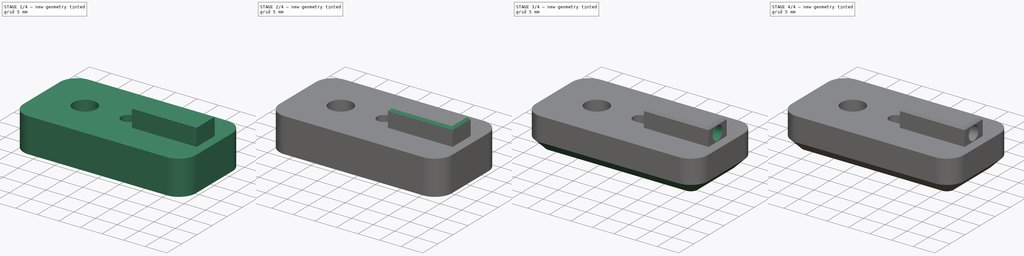
[diagram: build sequence overview — one tinted view per stage of 4, left to right]
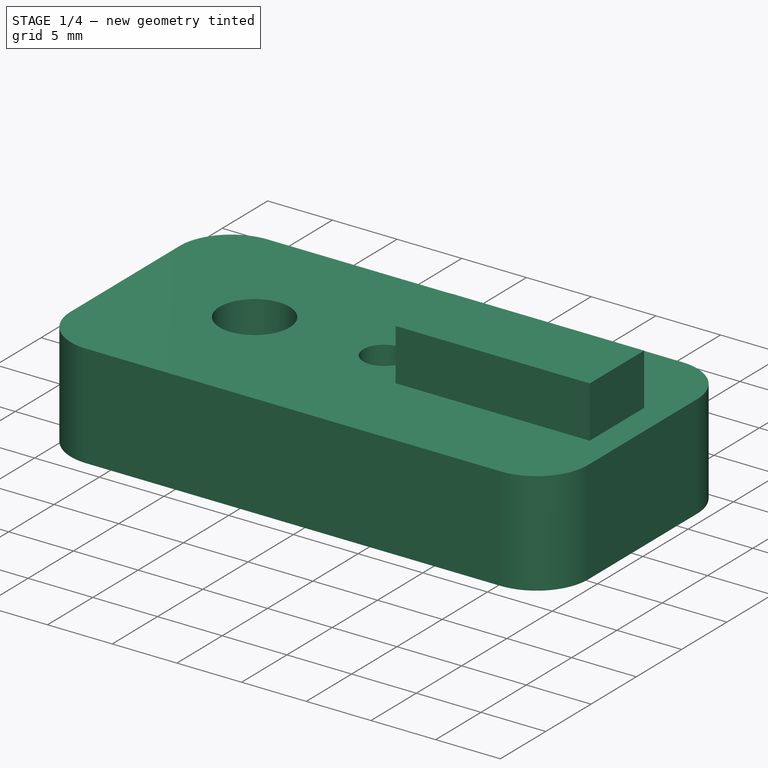
[diagram: stage 1 of 4 — iso view after this stage's code; geometry added in this stage tinted green]
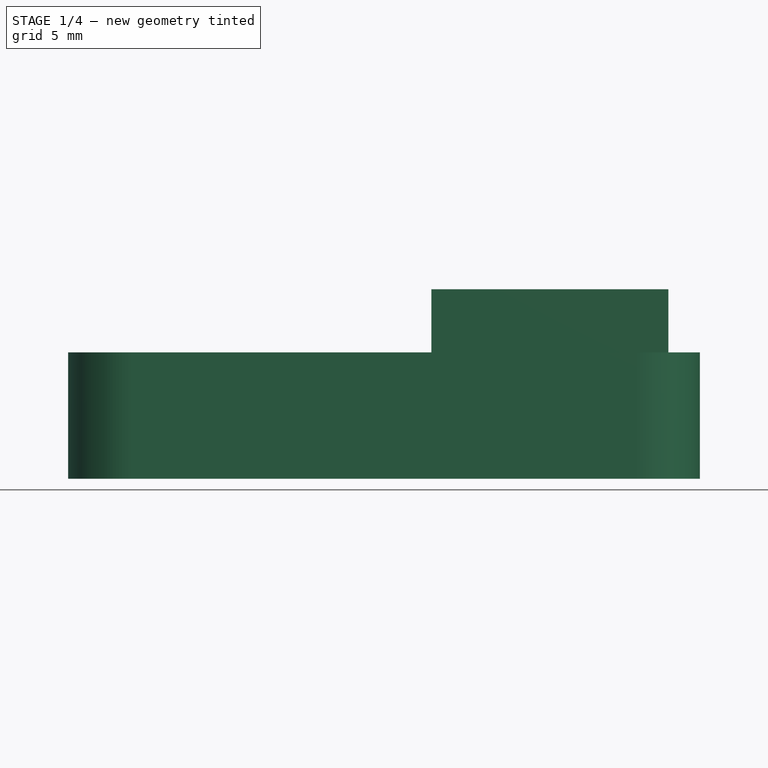
[diagram: stage 1 of 4 — front view after this stage's code; geometry added in this stage tinted green]
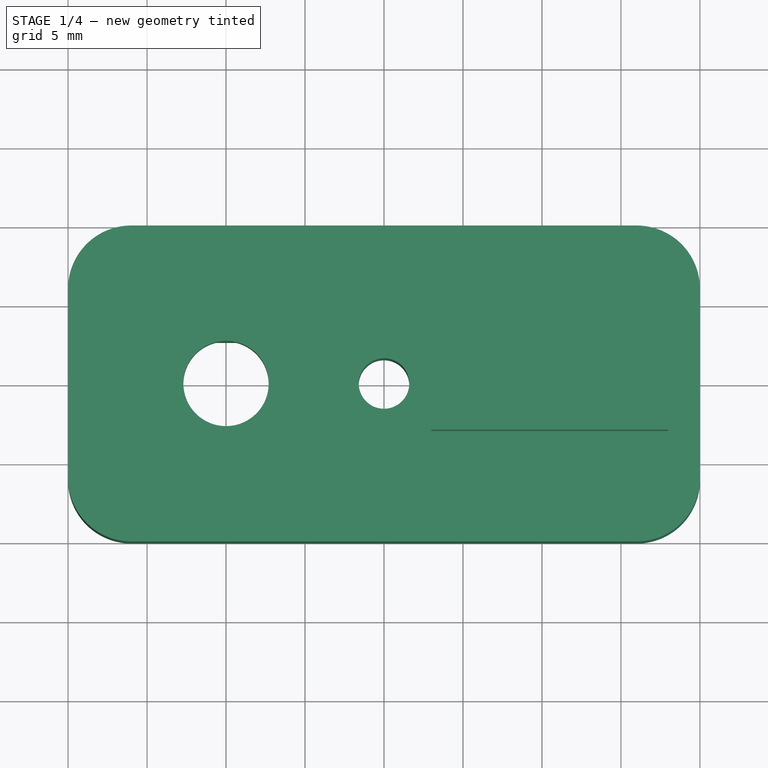
[diagram: stage 1 of 4 — top view after this stage's code; geometry added in this stage tinted green]
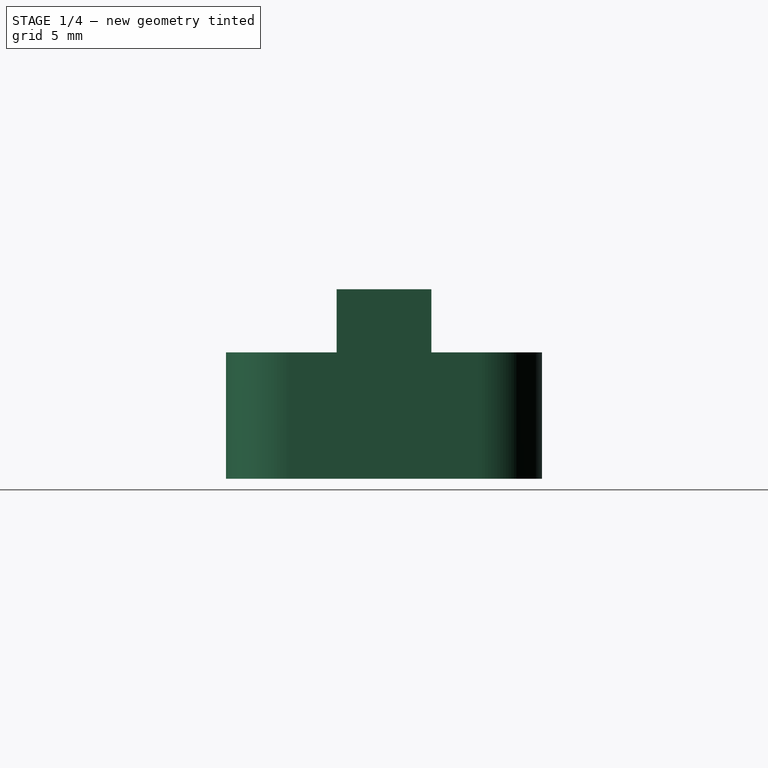
[diagram: stage 1 of 4 — right view after this stage's code; geometry added in this stage tinted green]
FCSTD DOCUMENT  (FreeCAD 1.1R20260414 (Git shallow))
Label: ThermistorExtrusionMount
License: All rights reserved
LicenseURL: https://en.wikipedia.org/wiki/All_rights_reserved
objects: Sketcher::SketchObject×8, PartDesign::Pocket×6, PartDesign::Body×3, App::Point×3, PartDesign::Pad×2, PartDesign::Chamfer×2, PartDesign::FeatureBase×2, PartDesign::Plane×1, PartDesign::Fillet×1
note: 57 computed .brp shape members not serialized (recipe doc carries the construction recipe); baked Part::Feature solids carry a one-line shape summary decoded from their .brp

FEATURE [Sketcher::SketchObject] Sketch  label="BodySketch"
  ArcFitTolerance = 1e-06
  AttachmentSupport = -> [XY_Plane]
  ExternalTypes = [0]
  FullyConstrained = true
  MakeInternals = false
  MapMode = 5
  _ExternalGeoVersion = 0
  sketch-geometry (14):
    g0: LineSegment StartX=4 StartY=0 StartZ=0 EndX=36 EndY=0 EndZ=0
    g1: LineSegment StartX=40 StartY=4 StartZ=0 EndX=40 EndY=16 EndZ=0
    g2: LineSegment StartX=36 StartY=20 StartZ=0 EndX=4 EndY=20 EndZ=0
    g3: LineSegment StartX=0 StartY=16 StartZ=0 EndX=0 EndY=4 EndZ=0
    g4: ArcOfCircle CenterX=4 CenterY=4 CenterZ=0 NormalX=0 NormalY=0 NormalZ=1 AngleXU=0 Radius=4 StartAngle=3.14159 EndAngle=4.71239
    g5: GeomPoint [constr] X=0 Y=0 Z=0
    g6: ArcOfCircle CenterX=4 CenterY=16 CenterZ=0 NormalX=0 NormalY=0 NormalZ=1 AngleXU=0 Radius=4 StartAngle=1.5708 EndAngle=3.14159
    g7: GeomPoint [constr] X=0 Y=20 Z=0
    g8: ArcOfCircle CenterX=36 CenterY=16 CenterZ=0 NormalX=0 NormalY=0 NormalZ=1 AngleXU=0 Radius=4 StartAngle=4.18e-14 EndAngle=1.5708
    g9: GeomPoint [constr] X=40 Y=20 Z=0
    g10: ArcOfCircle CenterX=36 CenterY=4 CenterZ=0 NormalX=0 NormalY=0 NormalZ=1 AngleXU=0 Radius=4 StartAngle=4.71239 EndAngle=6.28319
    g11: GeomPoint [constr] X=40 Y=0 Z=0
    g12: Circle CenterX=10 CenterY=10 CenterZ=0 NormalX=0 NormalY=0 NormalZ=1 AngleXU=0 Radius=2.7
    g13: Circle CenterX=20 CenterY=10 CenterZ=0 NormalX=0 NormalY=0 NormalZ=1 AngleXU=0 Radius=1.6
  constraints (33):
    c: Horizontal(g0)
    c: Horizontal(g2)
    c: Vertical(g1)
    c: Vertical(g3)
    c: Coincident(g5,g-1)
    c: DistanceY(g5,g7) = 20
    c: DistanceX(g7,g9) = 40
    c: PointOnObject(g5,g0)
    c: PointOnObject(g5,g3)
    c: Tangent(g0,g4) = -1.5708
    c: Tangent(g3,g4) = -1.5708
    c: PointOnObject(g7,g3)
    c: PointOnObject(g7,g2)
    c: Tangent(g3,g6) = -1.5708
    c: Tangent(g2,g6) = -1.5708
    c: PointOnObject(g9,g2)
    c: PointOnObject(g9,g1)
    c: Tangent(g2,g8) = -1.5708
    c: Tangent(g1,g8) = -1.5708
    c: PointOnObject(g11,g1)
    c: PointOnObject(g11,g0)
    c: Tangent(g1,g10) = -1.5708
    c: Tangent(g0,g10) = -1.5708
    c: Radius(g4) = 4
    c: Radius(g10) = 4
    c: Equal(g10,g8)
    c: Equal(g4,g6)
    c: Diameter(g12) = 5.4
    c: Distance(g12,g-2) = 10
    c: Distance(g12,g-1) = 10
    c: Diameter(g13) = 3.2
    c: Horizontal(g13,g12)
    c: DistanceX(g12,g13) = 10
FEATURE [PartDesign::Pad] Pad  label="BodyPad"
  Direction = (0,0,1)
  Length = 8
  Length2 = 10
  Profile = -> Sketch
  ReferenceAxis = -> Sketch [N_Axis]
  Refine = true
  SideType = 0
  Suppressed = false
  Type = 0
  Type2 = 0
FEATURE [Sketcher::SketchObject] Sketch001  label="WireHousingSketch"
  ArcFitTolerance = 1e-06
  AttachmentSupport = -> [Pad]
  ExternalTypes = [0]
  FullyConstrained = true
  MakeInternals = false
  MapMode = 5
  Placement = pos=(0,0,8) rot=(0,0,1;0rad)
  _ExternalGeoVersion = 0
  sketch-geometry (4):
    g0: LineSegment StartX=23 StartY=13 StartZ=0 EndX=23 EndY=7 EndZ=0
    g1: LineSegment StartX=23 StartY=7 StartZ=0 EndX=38 EndY=7 EndZ=0
    g2: LineSegment StartX=38 StartY=7 StartZ=0 EndX=38 EndY=13 EndZ=0
    g3: LineSegment StartX=38 StartY=13 StartZ=0 EndX=23 EndY=13 EndZ=0
  constraints (12):
    c: Coincident(g0,g1)
    c: Coincident(g1,g2)
    c: Coincident(g2,g3)
    c: Coincident(g3,g0)
    c: Vertical(g0)
    c: Vertical(g2)
    c: Horizontal(g1)
    c: Horizontal(g3)
    c: DistanceY(g2,g2) = 6
    c: DistanceX(g-1,g0) = 23
    c: DistanceX(g1,g1) = 15
    c: Distance(g1,g-1) = 7
FEATURE [PartDesign::Pad] Pad001  label="WireHousingPad"
  BaseFeature = -> Pad
  Direction = (0,0,1)
  Length = 4
  Length2 = 10
  Profile = -> Sketch001
  ReferenceAxis = -> Sketch001 [N_Axis]
  Refine = true
  SideType = 0
  Suppressed = false
  Type = 0
  Type2 = 0
FEATURE [Sketcher::SketchObject] Sketch002  label="CounterboreSupport1Sketch"
  ArcFitTolerance = 1e-06
  AttachmentSupport = -> [Pad001]
  ExternalGeometry = -> [Pad001]
  ExternalTypes = [0]
  FullyConstrained = true
  MakeInternals = false
  MapMode = 5
  Placement = pos=(0,0,0) rot=(1,0,0;3.14159rad)
  _ExternalGeoVersion = 0
  sketch-geometry (4):
    g0: LineSegment StartX=7.3 StartY=-7.3 StartZ=0 EndX=7.3 EndY=-12.7 EndZ=0
    g1: LineSegment StartX=7.3 StartY=-12.7 StartZ=0 EndX=12.7 EndY=-12.7 EndZ=0
    g2: LineSegment StartX=12.7 StartY=-12.7 StartZ=0 EndX=12.7 EndY=-7.3 EndZ=0
    g3: LineSegment StartX=12.7 StartY=-7.3 StartZ=0 EndX=7.3 EndY=-7.3 EndZ=0
  constraints (11):
    c: Coincident(g0,g1)
    c: Coincident(g1,g2)
    c: Coincident(g2,g3)
    c: Coincident(g3,g0)
    c: Vertical(g0)
    c: Vertical(g2)
    c: Horizontal(g1)
    c: Horizontal(g3)
    c: Symmetric(g0,g1,g-3)
    c: Equal(g3,g2)
    c: Tangent(g-3,g3)
FEATURE [PartDesign::Pocket] Pocket  label="CounterboreSupport1Pocket"
  BaseFeature = -> Pad001
  Direction = (0,0,1)
  Length = 4.4
  Length2 = 5
  Profile = -> Sketch002
  ReferenceAxis = -> Sketch002 [N_Axis]
  Refine = true
  SideType = 0
  Suppressed = false
  Type = 0
  Type2 = 0
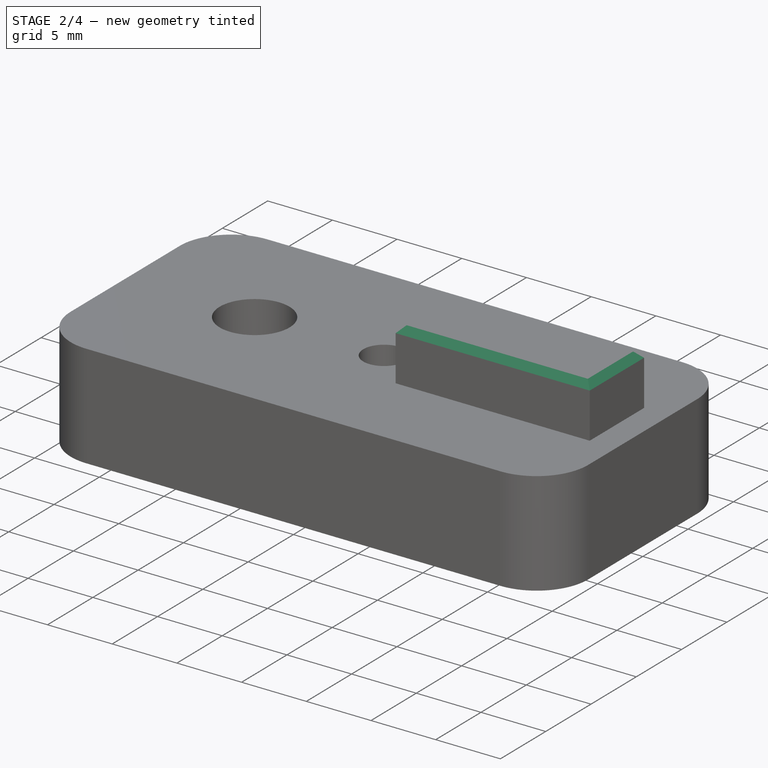
[diagram: stage 2 of 4 — iso view after this stage's code; geometry added in this stage tinted green]
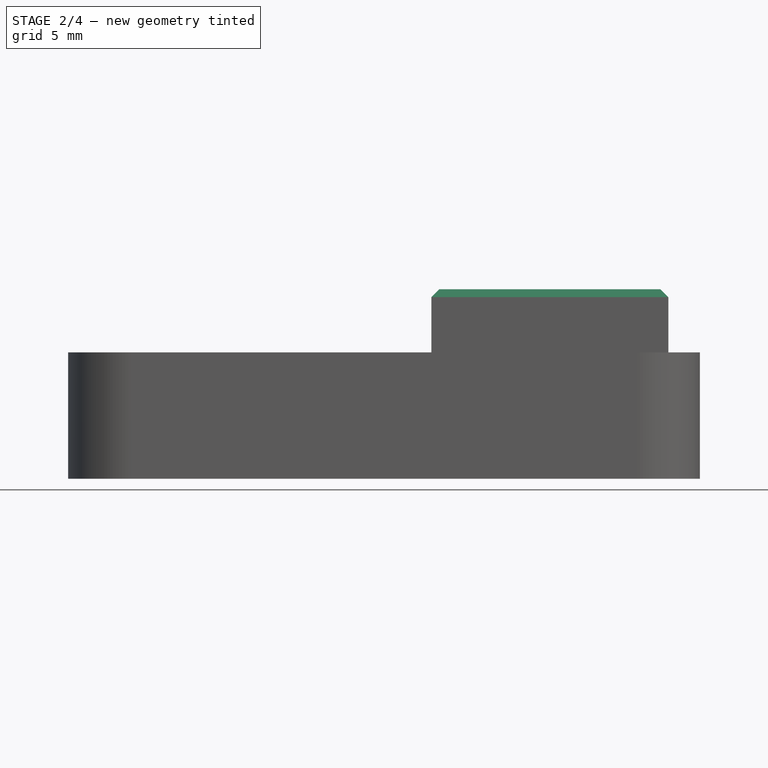
[diagram: stage 2 of 4 — front view after this stage's code; geometry added in this stage tinted green]
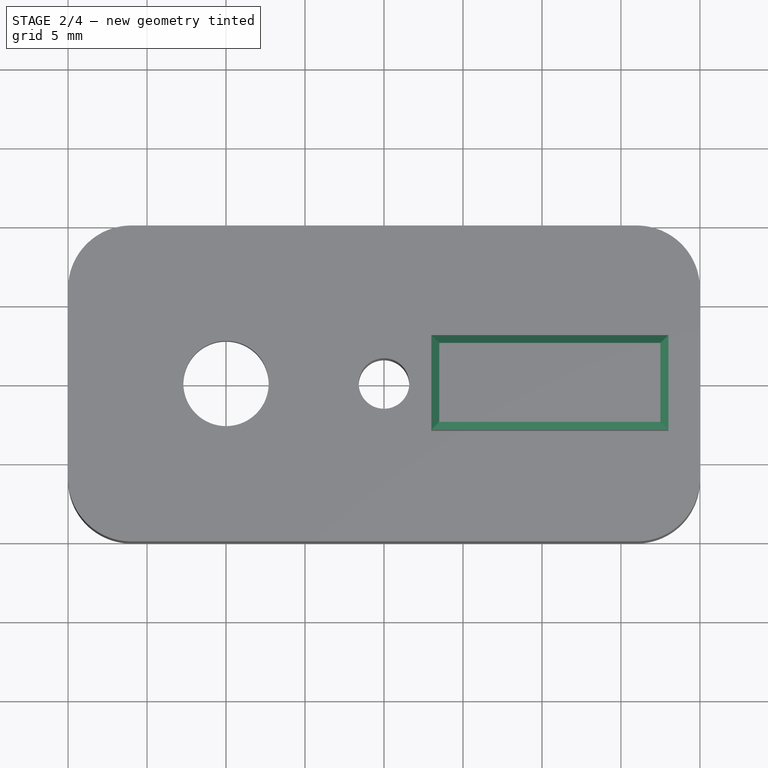
[diagram: stage 2 of 4 — top view after this stage's code; geometry added in this stage tinted green]
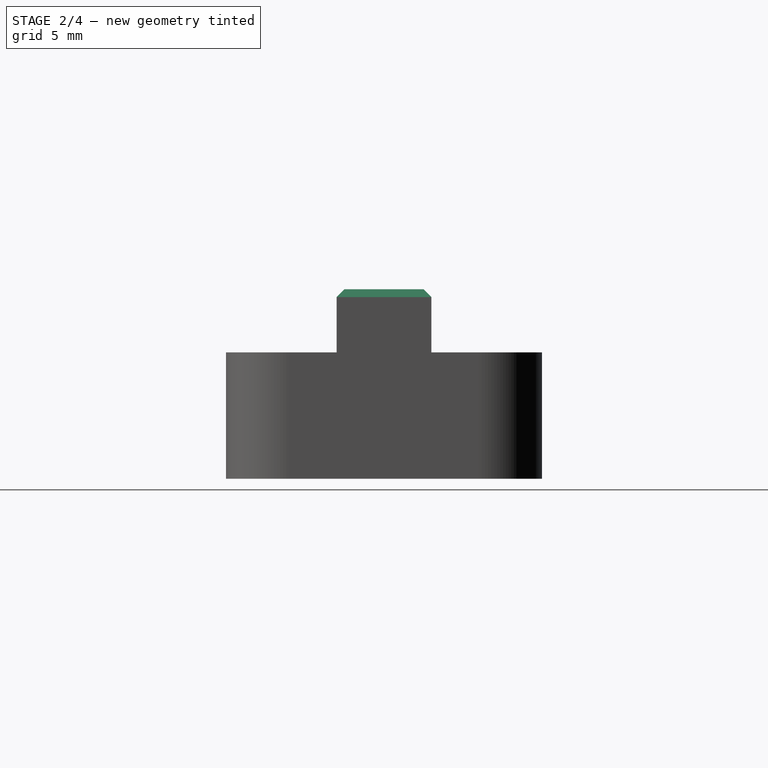
[diagram: stage 2 of 4 — right view after this stage's code; geometry added in this stage tinted green]
FEATURE [Sketcher::SketchObject] Sketch003  label="CounterboreSupport2Sketch"
  ArcFitTolerance = 1e-06
  AttachmentSupport = -> [Pocket]
  ExternalGeometry = -> [Pocket]
  ExternalTypes = [0]
  FullyConstrained = true
  MakeInternals = false
  MapMode = 5
  Placement = pos=(0,0,0) rot=(1,0,0;3.14159rad)
  _ExternalGeoVersion = 0
  sketch-geometry (8):
    g0: ArcOfCircle CenterX=10 CenterY=-10 CenterZ=0 NormalX=0 NormalY=0 NormalZ=1 AngleXU=0 Radius=4.8 StartAngle=2.54419 EndAngle=3.739
    g1: ArcOfCircle CenterX=10 CenterY=-10 CenterZ=0 NormalX=0 NormalY=0 NormalZ=1 AngleXU=0 Radius=4.8 StartAngle=5.68578 EndAngle=6.88059
    g2: LineSegment StartX=13.9686 StartY=-7.3 StartZ=0 EndX=12.7 EndY=-7.3 EndZ=0
    g3: LineSegment StartX=12.7 StartY=-7.3 StartZ=0 EndX=12.7 EndY=-12.7 EndZ=0
    g4: LineSegment StartX=12.7 StartY=-12.7 StartZ=0 EndX=13.9686 EndY=-12.7 EndZ=0
    g5: LineSegment StartX=7.3 StartY=-12.7 StartZ=0 EndX=6.03137 EndY=-12.7 EndZ=0
    g6: LineSegment StartX=7.3 StartY=-12.7 StartZ=0 EndX=7.3 EndY=-7.3 EndZ=0
    g7: LineSegment StartX=7.3 StartY=-7.3 StartZ=0 EndX=6.03137 EndY=-7.3 EndZ=0
  constraints (20):
    c: Coincident(g0,g-3)
    c: Coincident(g1,g0)
    c: Radius(g0) = 4.8
    c: Equal(g0,g1)
    c: Coincident(g2,g1)
    c: Coincident(g2,g-5)
    c: Horizontal(g2)
    c: Coincident(g3,g2)
    c: Coincident(g3,g-5)
    c: Coincident(g4,g3)
    c: Coincident(g4,g1)
    c: Horizontal(g4)
    c: Coincident(g5,g-4)
    c: Coincident(g5,g0)
    c: Coincident(g6,g5)
    c: Coincident(g6,g-4)
    c: Coincident(g7,g6)
    c: Coincident(g7,g0)
    c: Horizontal(g7)
    c: Horizontal(g5)
FEATURE [PartDesign::Pocket] Pocket001  label="CounterboreSupport2Pocket"
  BaseFeature = -> Pocket
  Direction = (0,0,1)
  Length = 4.2
  Length2 = 5
  Profile = -> Sketch003
  ReferenceAxis = -> Sketch003 [N_Axis]
  Refine = true
  SideType = 0
  Suppressed = false
  Type = 0
  Type2 = 0
FEATURE [Sketcher::SketchObject] Sketch004  label="CounterboreSupport3Sketch"
  ArcFitTolerance = 1e-06
  AttachmentSupport = -> [Pocket001]
  ExternalGeometry = -> [Pocket001]
  ExternalTypes = [0]
  FullyConstrained = true
  MakeInternals = false
  MapMode = 5
  Placement = pos=(0,0,0) rot=(1,0,0;3.14159rad)
  _ExternalGeoVersion = 0
  sketch-geometry (1):
    g0: Circle CenterX=10 CenterY=-10 CenterZ=0 NormalX=0 NormalY=0 NormalZ=1 AngleXU=0 Radius=4.8
  constraints (2):
    c: Coincident(g0,g-3)
    c: Diameter(g0) = 9.6
FEATURE [PartDesign::Pocket] Pocket002  label="CounterboreSupport3Pocket"
  BaseFeature = -> Pocket001
  Direction = (0,0,1)
  Length = 4
  Length2 = 5
  Profile = -> Sketch004
  ReferenceAxis = -> Sketch004 [N_Axis]
  Refine = true
  SideType = 0
  Suppressed = false
  Type = 0
  Type2 = 0
FEATURE [PartDesign::Chamfer] Chamfer  label="WireRetainerChamfer"
  Angle = 45
  Base = -> Pocket002 [Edge57,Edge59,Edge60,Edge55]
  BaseFeature = -> Pocket002
  ChamferType = 0
  FlipDirection = false
  Refine = true
  Size = 0.5
  Size2 = 1
  SupportTransform = false
  Suppressed = false
  UseAllEdges = false
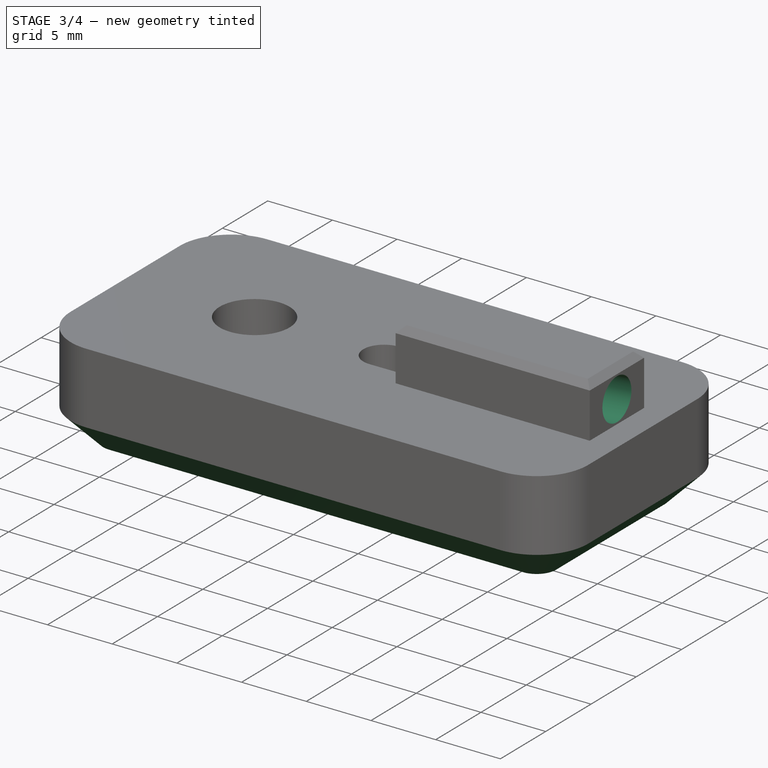
[diagram: stage 3 of 4 — iso view after this stage's code; geometry added in this stage tinted green]
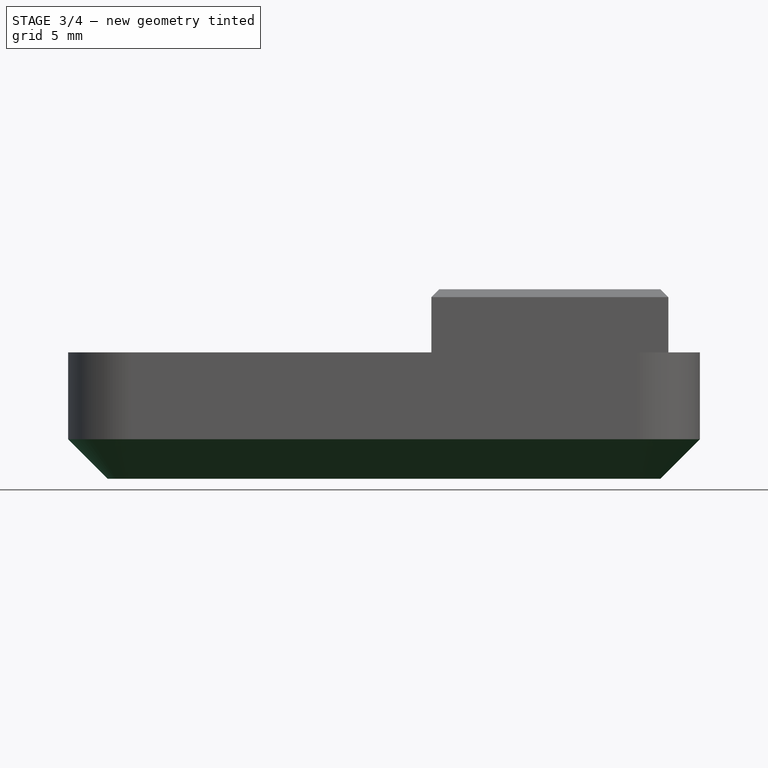
[diagram: stage 3 of 4 — front view after this stage's code; geometry added in this stage tinted green]
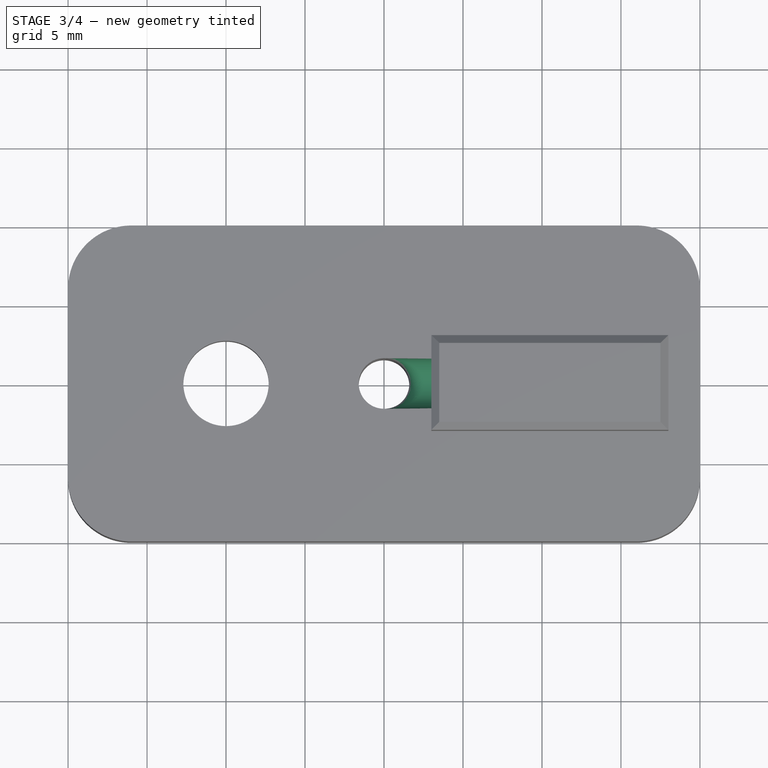
[diagram: stage 3 of 4 — top view after this stage's code; geometry added in this stage tinted green]
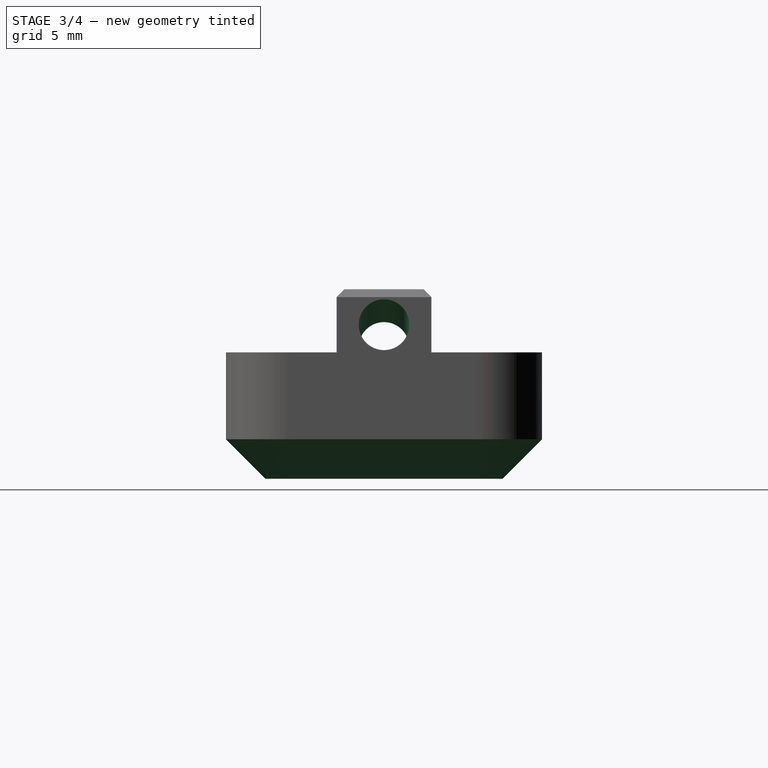
[diagram: stage 3 of 4 — right view after this stage's code; geometry added in this stage tinted green]
FEATURE [PartDesign::Chamfer] Chamfer001  label="BodyTopChamfer"
  Angle = 45
  Base = -> Chamfer [Edge33]
  BaseFeature = -> Chamfer
  ChamferType = 0
  FlipDirection = false
  Refine = true
  Size = 2.5
  Size2 = 1
  SupportTransform = false
  Suppressed = false
  UseAllEdges = false
FEATURE [PartDesign::Plane] DatumPlane
  AttachmentOffset = pos=(0,0,0) rot=(-1,0,0;0.095993rad)
  AttachmentSupport = -> [Chamfer001]
  Length = 60.583
  MapMode = 5
  Placement = pos=(40,0,0) rot=(0.557971,0.557971,0.614278;2.03989rad)
  ResizeMode = 0
  Width = 66.5828
FEATURE [Sketcher::SketchObject] Sketch005  label="WirePathSketch"
  ArcFitTolerance = 1e-06
  AttachmentSupport = -> [DatumPlane]
  ExternalTypes = [0]
  FullyConstrained = true
  MakeInternals = false
  MapMode = 5
  Placement = pos=(40,0,0) rot=(0.557971,0.557971,0.614278;2.03989rad)
  _ExternalGeoVersion = 0
  sketch-geometry (1):
    g0: Circle CenterX=10 CenterY=9.9 CenterZ=0 NormalX=0 NormalY=0 NormalZ=1 AngleXU=0 Radius=1.6
  constraints (3):
    c: Diameter(g0) = 3.2
    c: Distance(g0,g-2) = 10
    c: Distance(g0,g-1) = 9.9
FEATURE [PartDesign::Pocket] Pocket003  label="WirePathPocket"
  BaseFeature = -> Chamfer001
  Direction = (-0.995396,1e-16,-0.0958458)
  Length = 19
  Length2 = 5
  Profile = -> Sketch005
  ReferenceAxis = -> Sketch005 [N_Axis]
  Refine = true
  SideType = 0
  Suppressed = false
  Type = 0
  Type2 = 0
FEATURE [PartDesign::Fillet] Fillet  label="WirePathFillet"
  Base = -> Pocket003 [Edge63]
  BaseFeature = -> Pocket003
  Radius = 1
  Refine = true
  SupportTransform = false
  Suppressed = false
  UseAllEdges = false
FEATURE [PartDesign::Body] Body001  label="VoronLogoHorizontalMounted"
  AllowCompound = true
  Group = -> [Clone,Sketch006,Pocket004]
  Origin = -> Origin002
  Tip = -> Pocket004
FEATURE [App::Point] Origin005  label="Origin006"
  Role = Origin
FEATURE [PartDesign::FeatureBase] Clone001
  BaseFeature = -> Body
  Suppressed = false
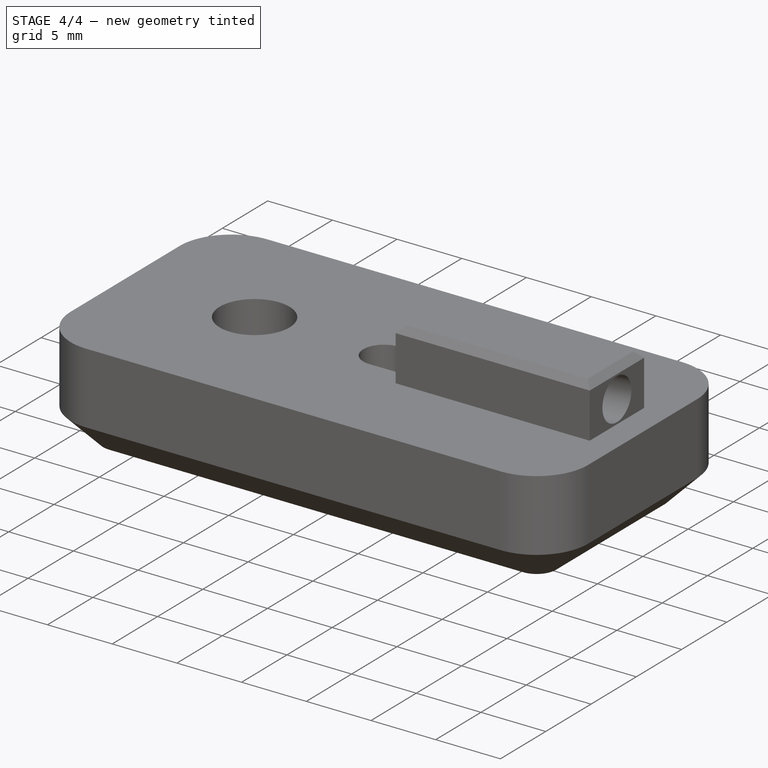
[diagram: stage 4 of 4 — iso view after this stage's code; geometry added in this stage tinted green]
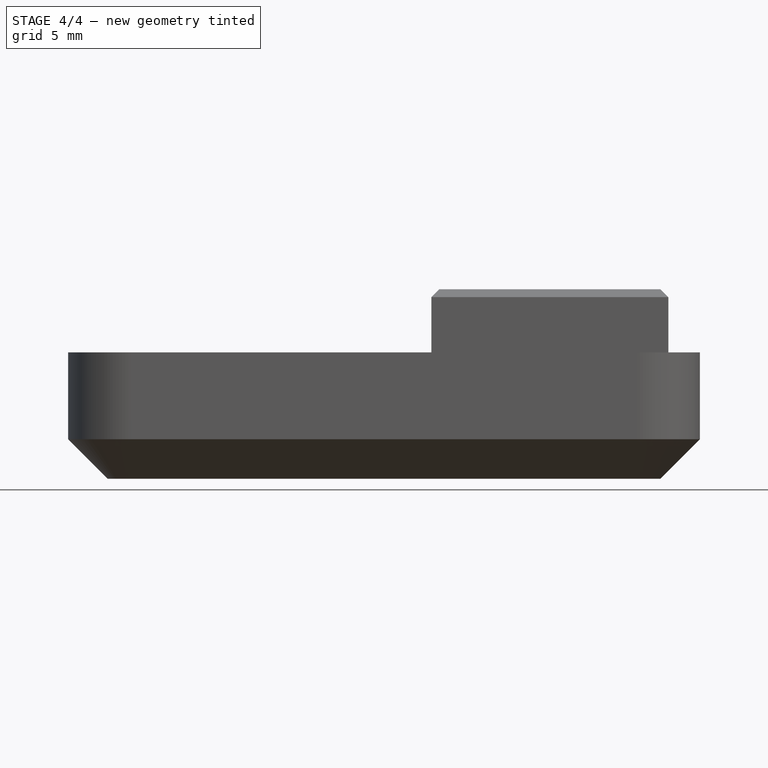
[diagram: stage 4 of 4 — front view after this stage's code; geometry added in this stage tinted green]
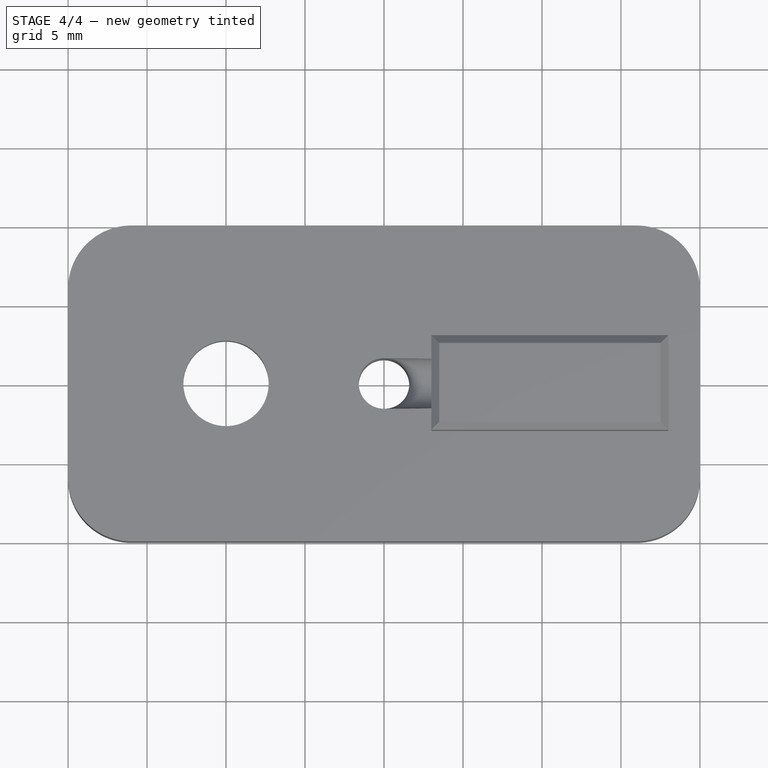
[diagram: stage 4 of 4 — top view after this stage's code; geometry added in this stage tinted green]
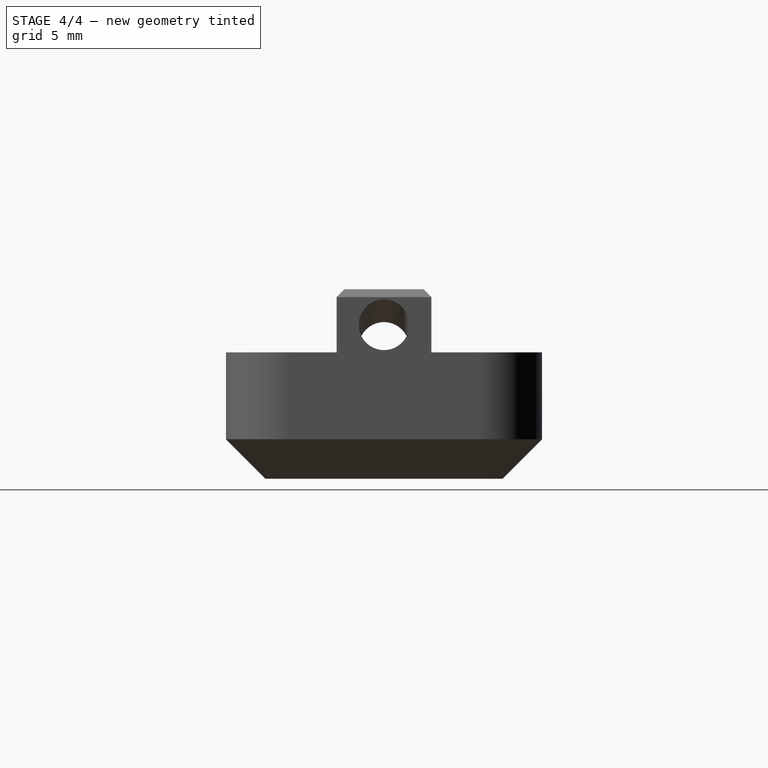
[diagram: stage 4 of 4 — right view after this stage's code; geometry added in this stage tinted green]
FEATURE [PartDesign::Body] Body  label="NoLogo"
  AllowCompound = false
  Group = -> [Sketch,Pad,Sketch001,Pad001,Sketch002,Pocket,Sketch003,Pocket001,Sketch004,Pocket002,Chamfer,Chamfer001,DatumPlane,Sketch005,Pocket003,Fillet]
  Origin = -> Origin
  Tip = -> Fillet
FEATURE [Sketcher::SketchObject] Sketch006  label="VoronLogoHorizontalSketch"
  ArcFitTolerance = 1e-06
  AttachmentOffset = pos=(0,0,0) rot=(1,0,0;3.14159rad)
  AttachmentSupport = -> [Fillet]
  ExternalTypes = [0]
  FullyConstrained = true
  MakeInternals = false
  MapMode = 5
  _ExternalGeoVersion = 0
  sketch-geometry (16):
    g0: LineSegment StartX=35 StartY=10 StartZ=0 EndX=32.1132 EndY=15 EndZ=0
    g1: LineSegment StartX=33 StartY=10 StartZ=0 EndX=30.1132 EndY=15 EndZ=0
    g2: LineSegment StartX=33.8868 StartY=5 StartZ=0 EndX=28.1132 EndY=15 EndZ=0
    g3: LineSegment StartX=31.8868 StartY=5 StartZ=0 EndX=26.1132 EndY=15 EndZ=0
    g4: LineSegment StartX=29.8868 StartY=5 StartZ=0 EndX=27 EndY=10 EndZ=0
    g5: LineSegment StartX=27.8868 StartY=5 StartZ=0 EndX=25 EndY=10 EndZ=0
    g6: LineSegment StartX=27 StartY=10 StartZ=0 EndX=25 EndY=10 EndZ=0
    g7: LineSegment StartX=29.8868 StartY=5 StartZ=0 EndX=27.8868 EndY=5 EndZ=0
    g8: LineSegment StartX=31.8868 StartY=5 StartZ=0 EndX=33.8868 EndY=5 EndZ=0
    g9: LineSegment StartX=28.1132 StartY=15 StartZ=0 EndX=26.1132 EndY=15 EndZ=0
    g10: LineSegment StartX=30.1132 StartY=15 StartZ=0 EndX=32.1132 EndY=15 EndZ=0
    g11: LineSegment StartX=35 StartY=10 StartZ=0 EndX=33 EndY=10 EndZ=0
    g12: LineSegment [constr] StartX=25 StartY=15 StartZ=0 EndX=25 EndY=5 EndZ=0
    g13: LineSegment [constr] StartX=25 StartY=5 StartZ=0 EndX=35 EndY=5 EndZ=0
    g14: LineSegment [constr] StartX=35 StartY=5 StartZ=0 EndX=35 EndY=15 EndZ=0
    g15: LineSegment [constr] StartX=35 StartY=15 StartZ=0 EndX=25 EndY=15 EndZ=0
  constraints (47):
    c: Coincident(g6,g4)
    c: Coincident(g6,g5)
    c: Horizontal(g6)
    c: Coincident(g7,g4)
    c: Coincident(g7,g5)
    c: Horizontal(g7)
    c: Coincident(g8,g3)
    c: Coincident(g8,g2)
    c: Coincident(g9,g2)
    c: Coincident(g9,g3)
    c: Coincident(g10,g1)
    c: Coincident(g10,g0)
    c: Coincident(g11,g0)
    c: Coincident(g11,g1)
    c: Horizontal(g11)
    c: Horizontal(g10)
    c: Horizontal(g9)
    c: Horizontal(g8)
    c: Horizontal(g1,g4)
    c: Parallel(g0,g1)
    c: Parallel(g2,g3)
    c: Parallel(g4,g5)
    c: Distance(g10,g10) = 2
    c: Equal(g10,g9)
    c: Equal(g9,g6)
    c: DistanceX(g2,g1) = 2
    c: DistanceX(g4,g3) = 2
    c: Horizontal(g1,g2)
    c: Horizontal(g3,g4)
    c: Angle(g4,g7) = 1.0472
    c: Parallel(g3,g4)
    c: Parallel(g2,g1)
    c: Distance(g5,g-2) = 25
    c: Coincident(g12,g13)
    c: Coincident(g13,g14)
    c: Coincident(g14,g15)
    c: Coincident(g15,g12)
    c: Vertical(g12)
    c: Vertical(g14)
    c: Horizontal(g13)
    c: Horizontal(g15)
    c: PointOnObject(g0,g14)
    c: PointOnObject(g3,g15)
    c: PointOnObject(g2,g13)
    c: Symmetric(g12,g12,g5)
    c: Distance(g13,g-1) = 5
    c: DistanceY(g14,g14) = 10
FEATURE [App::Point] Origin001  label="Origin"
  Role = Origin
FEATURE [App::Point] Origin003
  Role = Origin
FEATURE [PartDesign::FeatureBase] Clone
  BaseFeature = -> Body
  Suppressed = false
FEATURE [PartDesign::Pocket] Pocket004  label="VoronLogoHorizontalPocket"
  BaseFeature = -> Clone
  Direction = (0,-1e-16,-1)
  Length = 1
  Length2 = 5
  Profile = -> Sketch006
  ReferenceAxis = -> Sketch006 [N_Axis]
  Refine = true
  Reversed = true
  SideType = 0
  Suppressed = false
  Type = 0
  Type2 = 0
FEATURE [Sketcher::SketchObject] Sketch007  label="VoronLogoVerticalSketch"
  ArcFitTolerance = 1e-06
  AttachmentOffset = pos=(0,0,0) rot=(1,0,0;3.14159rad)
  AttachmentSupport = -> [Clone001]
  ExternalTypes = [0]
  FullyConstrained = true
  MakeInternals = false
  MapMode = 5
  _ExternalGeoVersion = 0
  sketch-geometry (16):
    g0: LineSegment StartX=35 StartY=11.8867 StartZ=0 EndX=35 EndY=13.8867 EndZ=0
    g1: LineSegment StartX=35 StartY=13.8867 StartZ=0 EndX=25 EndY=8.11325 EndZ=0
    g2: LineSegment StartX=25 StartY=8.11325 StartZ=0 EndX=25 EndY=6.11325 EndZ=0
    g3: LineSegment StartX=25 StartY=6.11325 StartZ=0 EndX=35 EndY=11.8867 EndZ=0
    g4: LineSegment StartX=35 StartY=9.88675 StartZ=0 EndX=30 EndY=7 EndZ=0
    g5: LineSegment StartX=30 StartY=7 StartZ=0 EndX=30 EndY=5 EndZ=0
    g6: LineSegment StartX=30 StartY=5 StartZ=0 EndX=35 EndY=7.88675 EndZ=0
    g7: LineSegment StartX=35 StartY=7.88675 StartZ=0 EndX=35 EndY=9.88675 EndZ=0
    g8: LineSegment StartX=30 StartY=15 StartZ=0 EndX=25 EndY=12.1133 EndZ=0
    g9: LineSegment StartX=25 StartY=12.1133 StartZ=0 EndX=25 EndY=10.1133 EndZ=0
    g10: LineSegment StartX=25 StartY=10.1133 StartZ=0 EndX=30 EndY=13 EndZ=0
    g11: LineSegment StartX=30 StartY=13 StartZ=0 EndX=30 EndY=15 EndZ=0
    g12: LineSegment [constr] StartX=25 StartY=5 StartZ=0 EndX=35 EndY=5 EndZ=0
    g13: LineSegment [constr] StartX=35 StartY=5 StartZ=0 EndX=35 EndY=15 EndZ=0
    g14: LineSegment [constr] StartX=35 StartY=15 StartZ=0 EndX=25 EndY=15 EndZ=0
    g15: LineSegment [constr] StartX=25 StartY=15 StartZ=0 EndX=25 EndY=5 EndZ=0
  constraints (47):
    c: Coincident(g0,g1)
    c: Coincident(g1,g2)
    c: Vertical(g2)
    c: Coincident(g2,g3)
    c: Coincident(g3,g0)
    c: Coincident(g4,g5)
    c: Coincident(g5,g6)
    c: Coincident(g6,g7)
    c: Coincident(g7,g4)
    c: Coincident(g8,g9)
    c: Vertical(g9)
    c: Coincident(g9,g10)
    c: Coincident(g10,g11)
    c: Coincident(g11,g8)
    c: Angle(g4,g7) = 1.0472
    c: Vertical(g7)
    c: Vertical(g0)
    c: Vertical(g5)
    c: Vertical(g11)
    c: Equal(g5,g2)
    c: Equal(g2,g9)
    c: Parallel(g4,g6)
    c: Parallel(g6,g3)
    c: Parallel(g3,g1)
    c: Parallel(g1,g10)
    c: Parallel(g10,g8)
    c: Vertical(g0,g4)
    c: Vertical(g10,g4)
    c: Vertical(g9,g1)
    c: DistanceY(g1,g9) = 2
    c: DistanceY(g4,g0) = 2
    c: Coincident(g12,g13)
    c: Coincident(g13,g14)
    c: Coincident(g14,g15)
    c: Coincident(g15,g12)
    c: Horizontal(g12)
    c: Horizontal(g14)
    c: Vertical(g13)
    c: Vertical(g15)
    c: PointOnObject(g8,g14)
    c: PointOnObject(g2,g15)
    c: PointOnObject(g0,g13)
    c: Equal(g13,g14)
    c: Distance(g12,g-1) = 5
    c: Distance(g2,g2) = 2
    c: Symmetric(g12,g12,g5)
    c: Distance(g12,g-2) = 25
FEATURE [PartDesign::Pocket] Pocket005  label="VoronLogoVerticalPocket"
  BaseFeature = -> Clone001
  Direction = (0,-1e-16,-1)
  Length = 1
  Length2 = 5
  Profile = -> Sketch007
  ReferenceAxis = -> Sketch007 [N_Axis]
  Refine = true
  Reversed = true
  SideType = 0
  Suppressed = false
  Type = 0
  Type2 = 0
FEATURE [PartDesign::Body] Body002  label="VoronLogoVerticalMounted"
  AllowCompound = true
  Group = -> [Clone001,Sketch007,Pocket005]
  Origin = -> Origin004
  Tip = -> Pocket005
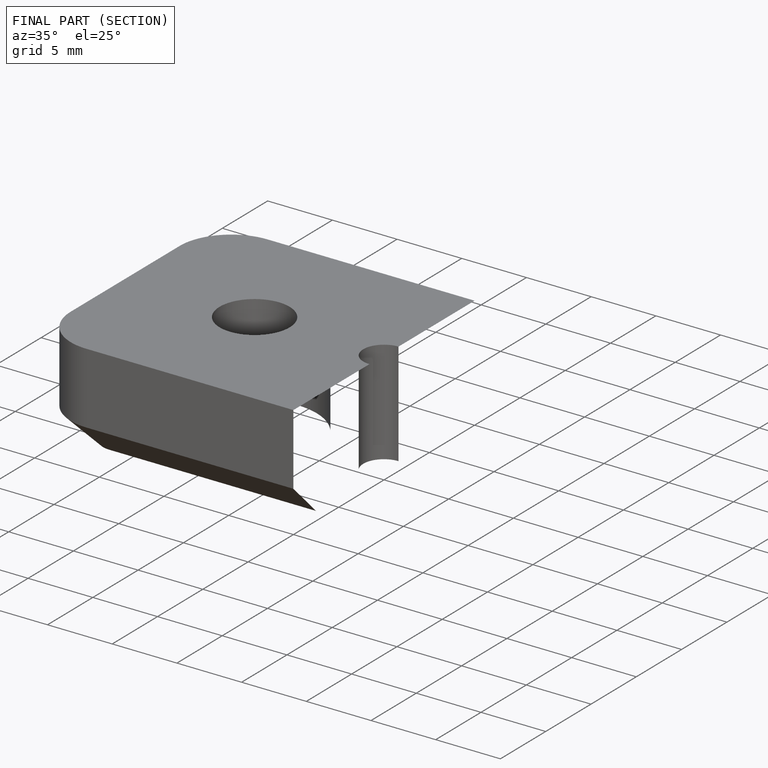
[diagram: finished part — half-section view (interior)]
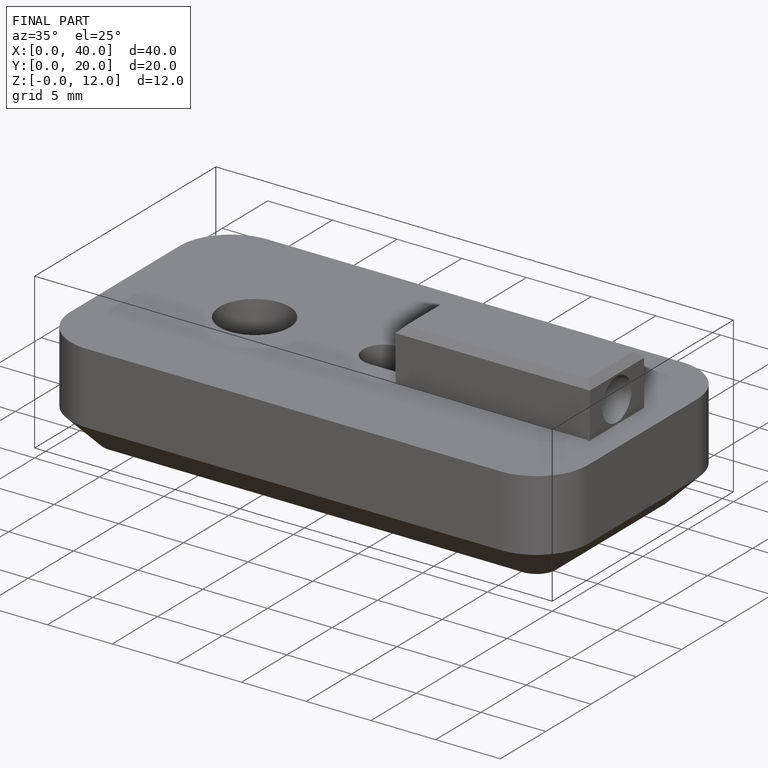
[diagram: finished part — iso view with bounding-box wireframe]
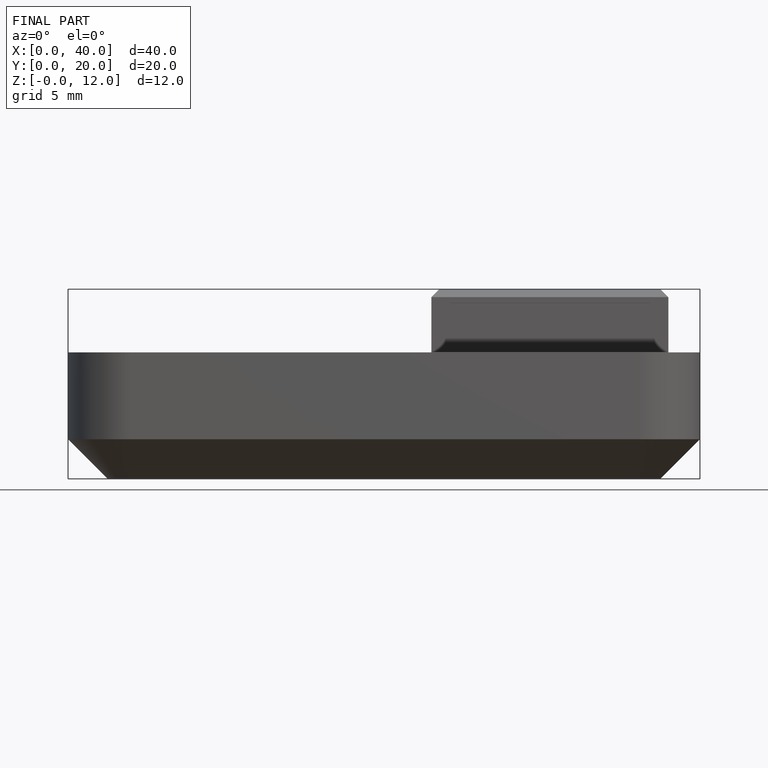
[diagram: finished part — front view with bounding-box wireframe]
